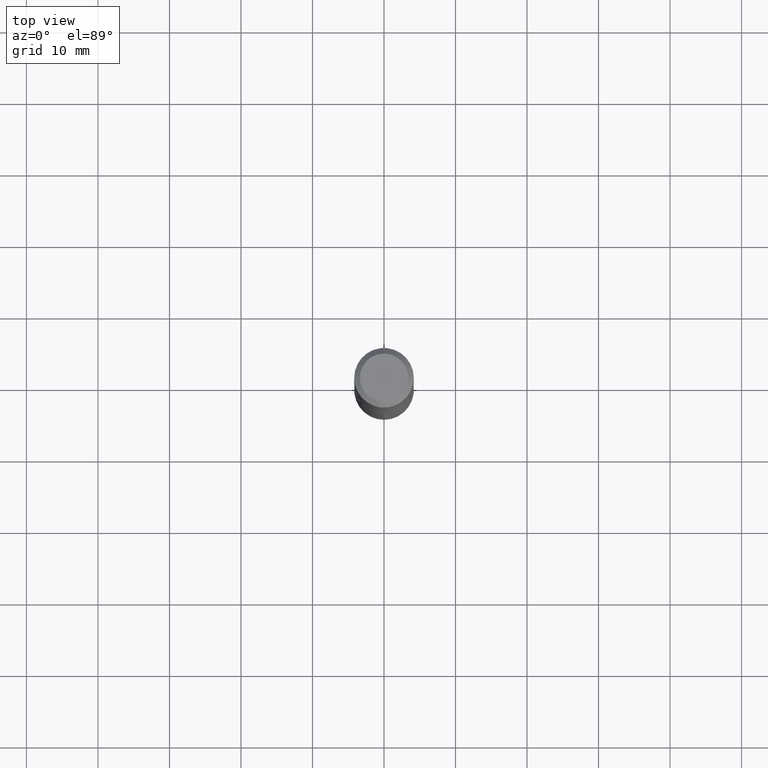
[diagram: clean part render]
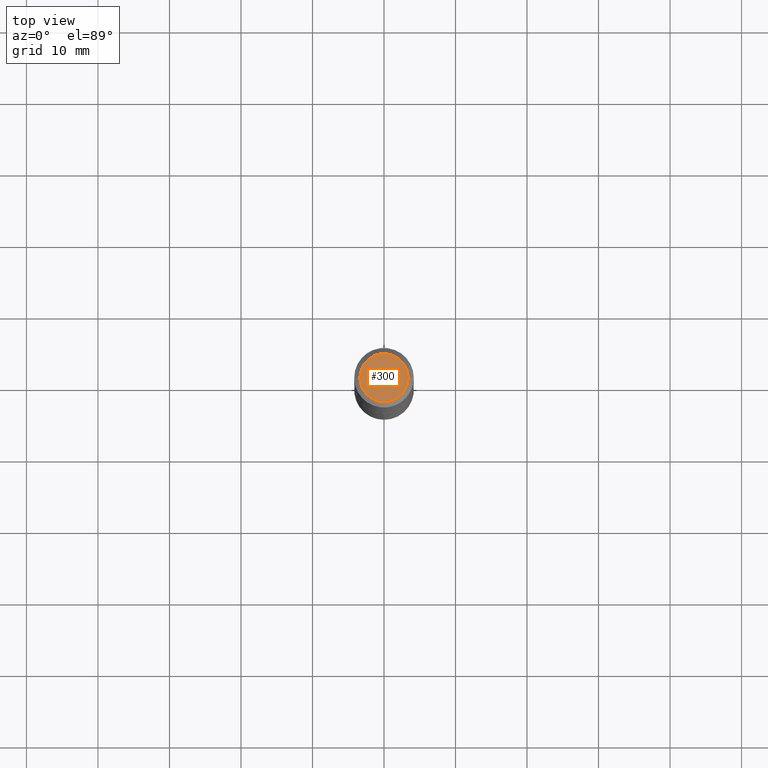
[diagram: same view with one face highlighted and labeled with its STEP entity id]
A machine part, top view. The second image highlights one B-rep face of the part: STEP entity #300.
In plain terms, the highlighted planar face has unit normal (0, -0, -1).
Its self-contained STEP definition (entity closure, byte-faithful):
#6 = DIRECTION ( 'NONE',  ( -1.000000000000000000, 6.982962677686265922E-15, -4.876176775795935793E-29 ) ) ;
#28 = AXIS2_PLACEMENT_3D ( 'NONE', #172, #211, #75 ) ;
#38 = EDGE_CURVE ( 'NONE', #342, #283, #297, .T. ) ;
#42 = CIRCLE ( 'NONE', #28, 0.1327999999999999736 ) ;
#50 = CARTESIAN_POINT ( 'NONE',  ( -2.335971725809272108E-47, 3.335148527799636409E-33, 9.552245033349346191E-19 ) ) ;
#75 = DIRECTION ( 'NONE',  ( 1.000000000000000000, -6.982962677686266711E-15, 4.876210623450875917E-29 ) ) ;
#89 = ORIENTED_EDGE ( 'NONE', *, *, #38, .T. ) ;
#104 = AXIS2_PLACEMENT_3D ( 'NONE', #303, #245, #6 ) ;
#108 = DIRECTION ( 'NONE',  ( -2.445468806185136597E-29, 3.491481338843145583E-15, 1.000000000000000000 ) ) ;
#111 = EDGE_CURVE ( 'NONE', #283, #342, #42, .T. ) ;
#163 = AXIS2_PLACEMENT_3D ( 'NONE', #50, #108, #353 ) ;
#172 = CARTESIAN_POINT ( 'NONE',  ( -2.335971725809272108E-47, 3.335148527799636409E-33, 9.552245033349346191E-19 ) ) ;
#183 = CARTESIAN_POINT ( 'NONE',  ( -0.1327999999999999736, 9.818918395161595893E-16, 9.552245033282587681E-19 ) ) ;
#185 = FACE_OUTER_BOUND ( 'NONE', #378, .T. ) ;
#211 = DIRECTION ( 'NONE',  ( -2.445468806185136597E-29, 3.491481338843145583E-15, 1.000000000000000000 ) ) ;
#216 = CARTESIAN_POINT ( 'NONE',  ( 0.1327999999999999736, -1.072823811238664119E-15, 9.552245033419278633E-19 ) ) ;
#245 = DIRECTION ( 'NONE',  ( 2.438088387897960049E-29, -3.491481338843145188E-15, -1.000000000000000000 ) ) ;
#283 = VERTEX_POINT ( 'NONE', #183 ) ;
#297 = CIRCLE ( 'NONE', #163, 0.1327999999999999736 ) ;
#300 = ADVANCED_FACE ( 'NONE', ( #185 ), #327, .F. ) ;
#303 = CARTESIAN_POINT ( 'NONE',  ( -1.167985862904636054E-47, 1.667574263899818204E-33, 4.776122516674673095E-19 ) ) ;
#327 = PLANE ( 'NONE',  #104 ) ;
#342 = VERTEX_POINT ( 'NONE', #216 ) ;
#353 = DIRECTION ( 'NONE',  ( 1.000000000000000000, -6.982962677686266711E-15, 4.876210623450875917E-29 ) ) ;
#373 = ORIENTED_EDGE ( 'NONE', *, *, #111, .T. ) ;
#378 = EDGE_LOOP ( 'NONE', ( #373, #89 ) ) ;